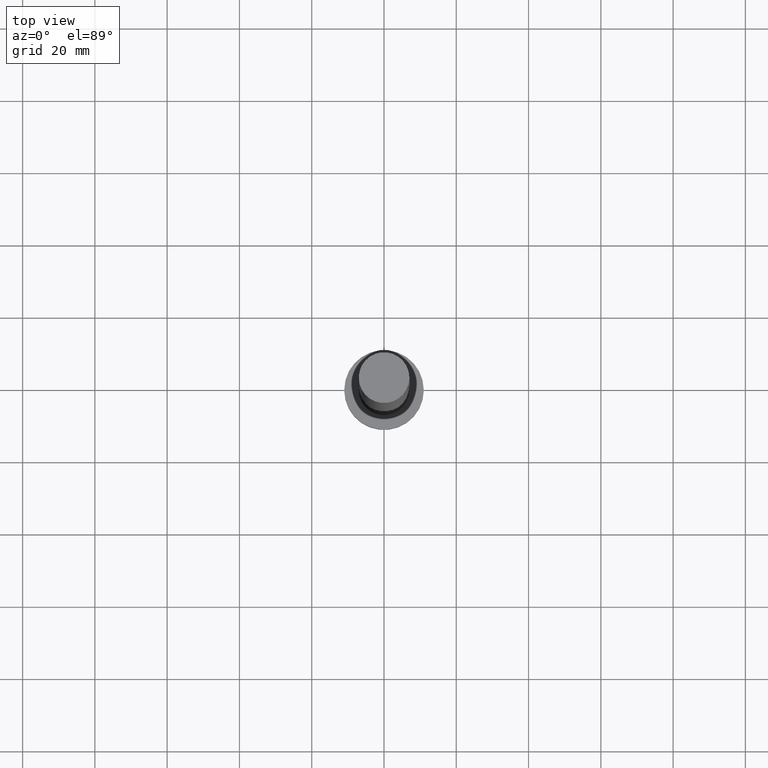
[diagram: clean part render]
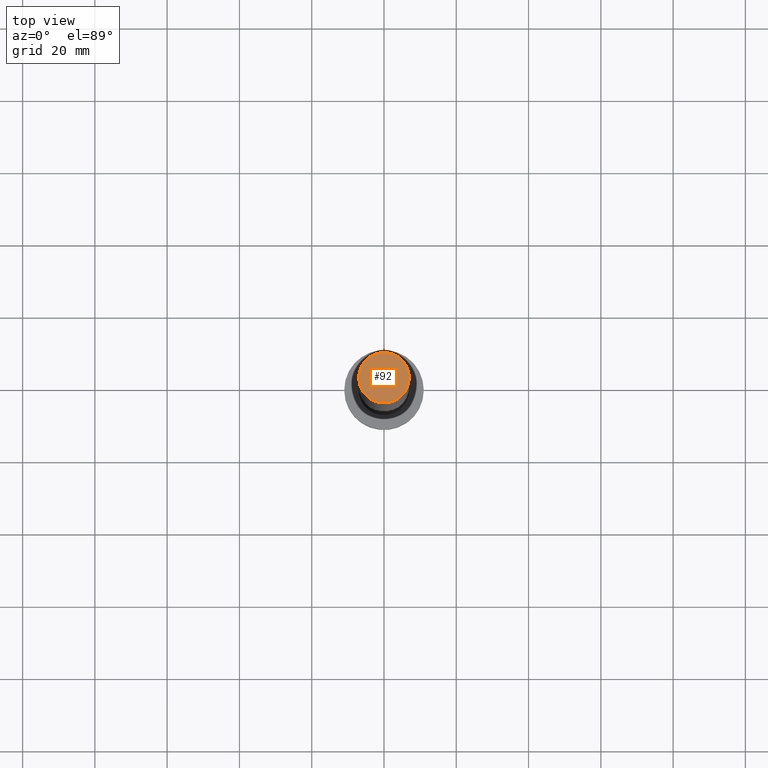
[diagram: same view with one face highlighted and labeled with its STEP entity id]
A machine part, top view. The second image highlights one B-rep face of the part: STEP entity #92.
In plain terms, the highlighted planar face has unit normal (0, 0, 1).
Its self-contained STEP definition (entity closure, byte-faithful):
#10 = ORIENTED_EDGE ( 'NONE', *, *, #39, .T. ) ;
#13 = CARTESIAN_POINT ( 'NONE',  ( 0.000000000000000000, 0.000000000000000000, 200.0000000000000000 ) ) ;
#15 = VERTEX_POINT ( 'NONE', #164 ) ;
#39 = EDGE_CURVE ( 'NONE', #15, #219, #114, .T. ) ;
#41 = EDGE_LOOP ( 'NONE', ( #138, #10 ) ) ;
#43 = AXIS2_PLACEMENT_3D ( 'NONE', #208, #225, #69 ) ;
#45 = CARTESIAN_POINT ( 'NONE',  ( -7.000000000000000888, 0.000000000000000000, 200.0000000000000000 ) ) ;
#48 = CIRCLE ( 'NONE', #158, 7.000000000000000888 ) ;
#50 = DIRECTION ( 'NONE',  ( 1.000000000000000000, 0.000000000000000000, 0.000000000000000000 ) ) ;
#69 = DIRECTION ( 'NONE',  ( 1.000000000000000000, 0.000000000000000000, -0.000000000000000000 ) ) ;
#84 = CARTESIAN_POINT ( 'NONE',  ( 0.000000000000000000, 0.000000000000000000, 200.0000000000000000 ) ) ;
#92 = ADVANCED_FACE ( 'NONE', ( #127 ), #130, .T. ) ;
#114 = CIRCLE ( 'NONE', #181, 7.000000000000000888 ) ;
#127 = FACE_OUTER_BOUND ( 'NONE', #41, .T. ) ;
#130 = PLANE ( 'NONE',  #43 ) ;
#138 = ORIENTED_EDGE ( 'NONE', *, *, #204, .T. ) ;
#158 = AXIS2_PLACEMENT_3D ( 'NONE', #84, #244, #50 ) ;
#164 = CARTESIAN_POINT ( 'NONE',  ( 7.000000000000000888, 8.572527594031474176E-16, 200.0000000000000000 ) ) ;
#165 = DIRECTION ( 'NONE',  ( 0.000000000000000000, 0.000000000000000000, 1.000000000000000000 ) ) ;
#181 = AXIS2_PLACEMENT_3D ( 'NONE', #13, #165, #203 ) ;
#203 = DIRECTION ( 'NONE',  ( 1.000000000000000000, 0.000000000000000000, 0.000000000000000000 ) ) ;
#204 = EDGE_CURVE ( 'NONE', #219, #15, #48, .T. ) ;
#208 = CARTESIAN_POINT ( 'NONE',  ( 0.000000000000000000, 0.000000000000000000, 200.0000000000000000 ) ) ;
#219 = VERTEX_POINT ( 'NONE', #45 ) ;
#225 = DIRECTION ( 'NONE',  ( 0.000000000000000000, 0.000000000000000000, 1.000000000000000000 ) ) ;
#244 = DIRECTION ( 'NONE',  ( 0.000000000000000000, 0.000000000000000000, 1.000000000000000000 ) ) ;